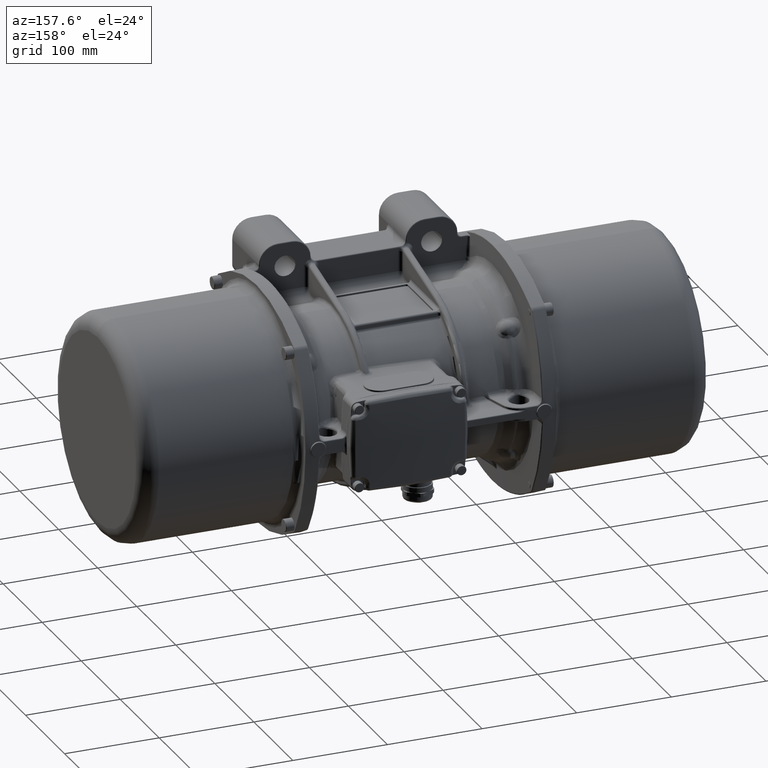
[diagram: clean part render]
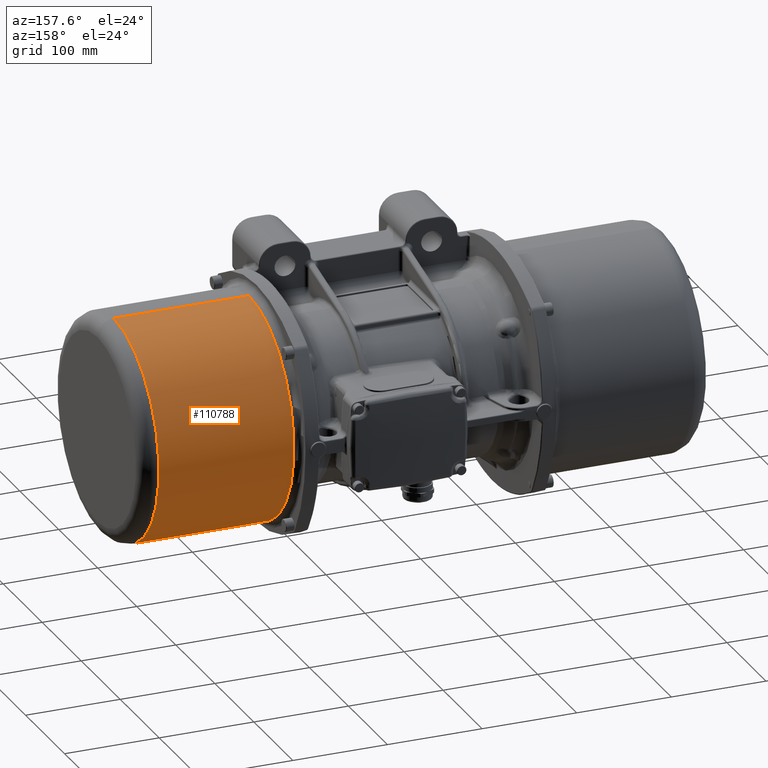
[diagram: same view with one face highlighted and labeled with its STEP entity id]
A machine part, auxiliary view. The second image highlights one B-rep face of the part: STEP entity #110788.
In plain terms, the highlighted cylindrical surface (partial cylindrical patch) has radius 115.95 mm, axis along (-1, 0, 0).
Its self-contained STEP definition (entity closure, byte-faithful):
#3827 = LINE ( 'NONE', #101390, #113947 ) ;
#10345 = CARTESIAN_POINT ( 'NONE',  ( 140.5000000000000000, 1.467739188778429000E-014, -115.9500000000000300 ) ) ;
#14411 = ORIENTED_EDGE ( 'NONE', *, *, #62782, .F. ) ;
#18451 = CARTESIAN_POINT ( 'NONE',  ( 283.3000000000000100, 1.419977963611356200E-014, -115.9500000000000200 ) ) ;
#24918 = DIRECTION ( 'NONE',  ( -1.000000000000000000, 0.0000000000000000000, 0.0000000000000000000 ) ) ;
#27217 = VECTOR ( 'NONE', #101916, 1000.000000000000000 ) ;
#27326 = DIRECTION ( 'NONE',  ( 0.0000000000000000000, 0.0000000000000000000, 1.000000000000000000 ) ) ;
#28260 = AXIS2_PLACEMENT_3D ( 'NONE', #124257, #134976, #48748 ) ;
#29457 = FACE_OUTER_BOUND ( 'NONE', #105322, .T. ) ;
#41191 = AXIS2_PLACEMENT_3D ( 'NONE', #123480, #70295, #27326 ) ;
#43160 = VERTEX_POINT ( 'NONE', #107814 ) ;
#48748 = DIRECTION ( 'NONE',  ( 0.0000000000000000000, 0.0000000000000000000, 1.000000000000000000 ) ) ;
#49827 = CARTESIAN_POINT ( 'NONE',  ( 283.3000000000000100, 0.0000000000000000000, 115.9500000000000200 ) ) ;
#49903 = CARTESIAN_POINT ( 'NONE',  ( 140.5000000000000000, 0.0000000000000000000, 115.9500000000000200 ) ) ;
#49939 = VERTEX_POINT ( 'NONE', #49827 ) ;
#55687 = LINE ( 'NONE', #18451, #27217 ) ;
#59966 = VERTEX_POINT ( 'NONE', #49903 ) ;
#62782 = EDGE_CURVE ( 'NONE', #49939, #59966, #3827, .T. ) ;
#70295 = DIRECTION ( 'NONE',  ( -1.000000000000000000, 0.0000000000000000000, 0.0000000000000000000 ) ) ;
#70642 = CIRCLE ( 'NONE', #98327, 115.9500000000000200 ) ;
#84181 = EDGE_CURVE ( 'NONE', #49939, #43160, #70642, .T. ) ;
#84307 = EDGE_CURVE ( 'NONE', #43160, #136523, #55687, .T. ) ;
#97816 = ORIENTED_EDGE ( 'NONE', *, *, #84307, .T. ) ;
#98327 = AXIS2_PLACEMENT_3D ( 'NONE', #130880, #132739, #122066 ) ;
#101390 = CARTESIAN_POINT ( 'NONE',  ( 283.3000000000000100, 0.0000000000000000000, 115.9500000000000200 ) ) ;
#101916 = DIRECTION ( 'NONE',  ( -1.000000000000000000, 0.0000000000000000000, 0.0000000000000000000 ) ) ;
#105322 = EDGE_LOOP ( 'NONE', ( #136569, #97816, #117084, #14411 ) ) ;
#107814 = CARTESIAN_POINT ( 'NONE',  ( 283.3000000000000100, 1.419977963611356200E-014, -115.9500000000000200 ) ) ;
#110788 = ADVANCED_FACE ( 'NONE', ( #29457 ), #113002, .T. ) ;
#113002 = CYLINDRICAL_SURFACE ( 'NONE', #28260, 115.9500000000000200 ) ;
#113947 = VECTOR ( 'NONE', #24918, 1000.000000000000000 ) ;
#114554 = EDGE_CURVE ( 'NONE', #59966, #136523, #119238, .T. ) ;
#117084 = ORIENTED_EDGE ( 'NONE', *, *, #114554, .F. ) ;
#119238 = CIRCLE ( 'NONE', #41191, 115.9500000000000200 ) ;
#122066 = DIRECTION ( 'NONE',  ( 0.0000000000000000000, 0.0000000000000000000, 1.000000000000000000 ) ) ;
#123480 = CARTESIAN_POINT ( 'NONE',  ( 140.5000000000000000, 0.0000000000000000000, 0.0000000000000000000 ) ) ;
#124257 = CARTESIAN_POINT ( 'NONE',  ( 283.3000000000000100, 0.0000000000000000000, 0.0000000000000000000 ) ) ;
#130880 = CARTESIAN_POINT ( 'NONE',  ( 283.3000000000000100, 0.0000000000000000000, 0.0000000000000000000 ) ) ;
#132739 = DIRECTION ( 'NONE',  ( -1.000000000000000000, 0.0000000000000000000, 0.0000000000000000000 ) ) ;
#134976 = DIRECTION ( 'NONE',  ( -1.000000000000000000, 0.0000000000000000000, 0.0000000000000000000 ) ) ;
#136523 = VERTEX_POINT ( 'NONE', #10345 ) ;
#136569 = ORIENTED_EDGE ( 'NONE', *, *, #84181, .T. ) ;